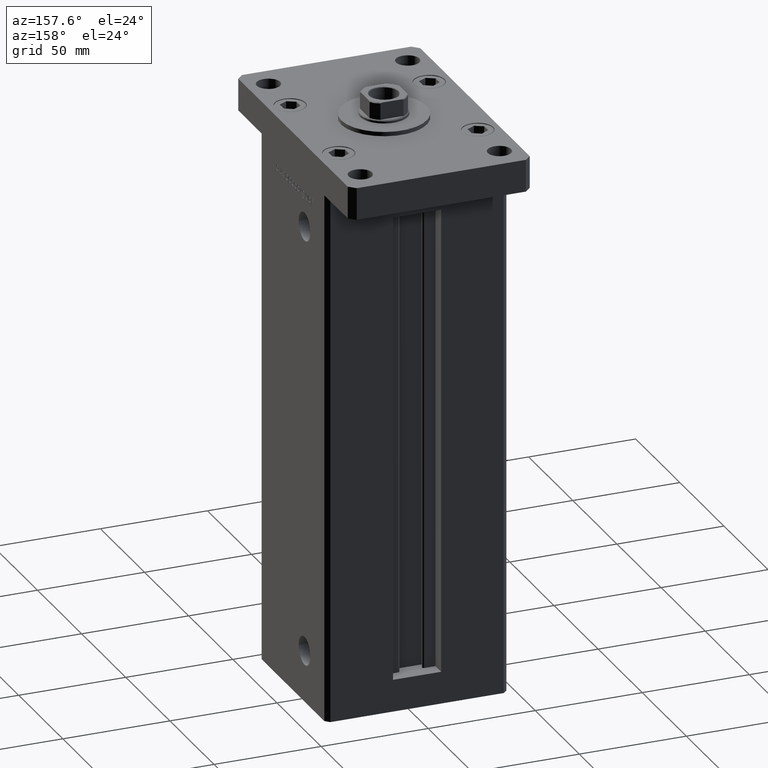
[diagram: clean part render]
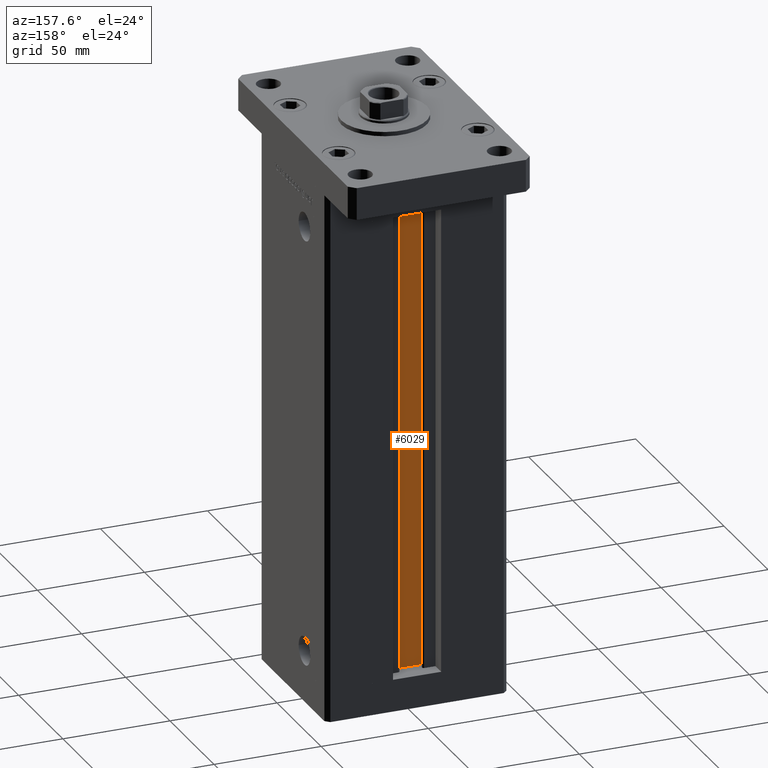
[diagram: same view with one face highlighted and labeled with its STEP entity id]
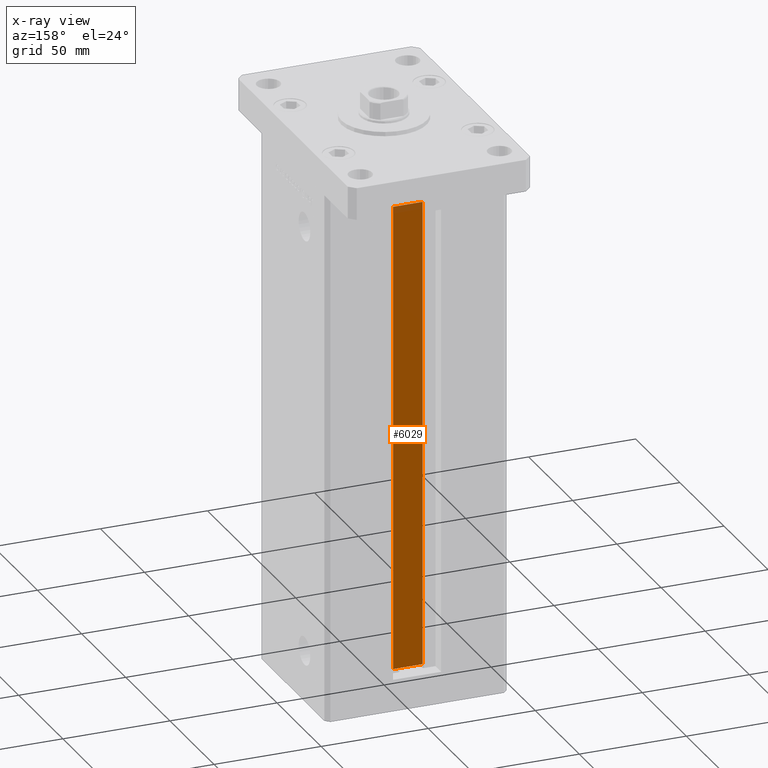
[diagram: x-ray of the same camera — body ghosted, the highlighted face saturated]
A machine part, auxiliary view. The second image highlights one B-rep face of the part: STEP entity #6029.
The next image is the same camera in x-ray: the body ghosted, the highlighted face saturated — about 2% of this face is hidden behind the body in this view.
In plain terms, the highlighted planar face has unit normal (0, -1, 0).
Its self-contained STEP definition (entity closure, byte-faithful):
#452 = LINE ( 'NONE', #32201, #14349 ) ;
#1515 = EDGE_LOOP ( 'NONE', ( #51877, #26295, #37507, #18019 ) ) ;
#3365 = CARTESIAN_POINT ( 'NONE',  ( 6.876153656360465938, 26.99999999999986855, 0.000000000000000000 ) ) ;
#6029 = ADVANCED_FACE ( 'NONE', ( #21005 ), #33470, .F. ) ;
#10635 = VECTOR ( 'NONE', #21429, 1000.000000000000000 ) ;
#12330 = CARTESIAN_POINT ( 'NONE',  ( 6.876153656360465938, 26.99999999999986855, 0.000000000000000000 ) ) ;
#12339 = EDGE_CURVE ( 'NONE', #20122, #49003, #34840, .T. ) ;
#12351 = DIRECTION ( 'NONE',  ( 0.000000000000000000, -1.000000000000000000, -0.000000000000000000 ) ) ;
#14349 = VECTOR ( 'NONE', #48709, 1000.000000000000000 ) ;
#15633 = EDGE_CURVE ( 'NONE', #49578, #51848, #452, .T. ) ;
#16935 = CARTESIAN_POINT ( 'NONE',  ( 6.876153656360465938, 26.99999999999986855, 0.000000000000000000 ) ) ;
#18019 = ORIENTED_EDGE ( 'NONE', *, *, #41425, .F. ) ;
#20122 = VERTEX_POINT ( 'NONE', #29094 ) ;
#20725 = AXIS2_PLACEMENT_3D ( 'NONE', #16935, #12351, #45916 ) ;
#21005 = FACE_OUTER_BOUND ( 'NONE', #1515, .T. ) ;
#21429 = DIRECTION ( 'NONE',  ( -1.000000000000000000, 0.000000000000000000, 0.000000000000000000 ) ) ;
#25247 = LINE ( 'NONE', #53431, #10635 ) ;
#26295 = ORIENTED_EDGE ( 'NONE', *, *, #43504, .F. ) ;
#27077 = CARTESIAN_POINT ( 'NONE',  ( 6.876153656360465938, 26.99999999999986855, 218.5000000000000000 ) ) ;
#29094 = CARTESIAN_POINT ( 'NONE',  ( -6.876153656360465938, 26.99999999999986855, 0.000000000000000000 ) ) ;
#32201 = CARTESIAN_POINT ( 'NONE',  ( 6.876153656360465938, 26.99999999999986855, 0.000000000000000000 ) ) ;
#33470 = PLANE ( 'NONE',  #20725 ) ;
#34840 = LINE ( 'NONE', #42933, #35993 ) ;
#35993 = VECTOR ( 'NONE', #38883, 1000.000000000000000 ) ;
#37507 = ORIENTED_EDGE ( 'NONE', *, *, #12339, .T. ) ;
#37767 = DIRECTION ( 'NONE',  ( 1.000000000000000000, -0.000000000000000000, -0.000000000000000000 ) ) ;
#38883 = DIRECTION ( 'NONE',  ( -0.000000000000000000, -0.000000000000000000, 1.000000000000000000 ) ) ;
#41425 = EDGE_CURVE ( 'NONE', #51848, #49003, #25247, .T. ) ;
#42933 = CARTESIAN_POINT ( 'NONE',  ( -6.876153656360465938, 26.99999999999986855, 0.000000000000000000 ) ) ;
#43504 = EDGE_CURVE ( 'NONE', #20122, #49578, #46156, .T. ) ;
#43860 = CARTESIAN_POINT ( 'NONE',  ( -6.876153656360465938, 26.99999999999986855, 218.5000000000000000 ) ) ;
#45916 = DIRECTION ( 'NONE',  ( 0.000000000000000000, 0.000000000000000000, -1.000000000000000000 ) ) ;
#46156 = LINE ( 'NONE', #12330, #47902 ) ;
#47902 = VECTOR ( 'NONE', #37767, 1000.000000000000000 ) ;
#48709 = DIRECTION ( 'NONE',  ( -0.000000000000000000, -0.000000000000000000, 1.000000000000000000 ) ) ;
#49003 = VERTEX_POINT ( 'NONE', #43860 ) ;
#49578 = VERTEX_POINT ( 'NONE', #3365 ) ;
#51848 = VERTEX_POINT ( 'NONE', #27077 ) ;
#51877 = ORIENTED_EDGE ( 'NONE', *, *, #15633, .F. ) ;
#53431 = CARTESIAN_POINT ( 'NONE',  ( 0.000000000000000000, 26.99999999999986855, 218.5000000000000000 ) ) ;